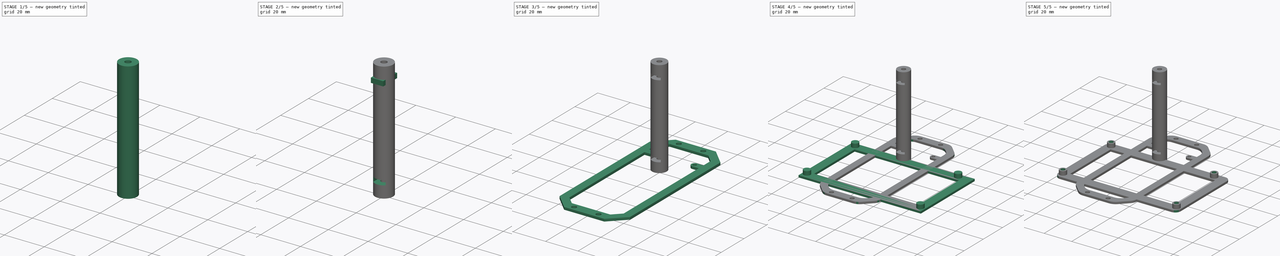
[diagram: build sequence overview — one tinted view per stage of 5, left to right]
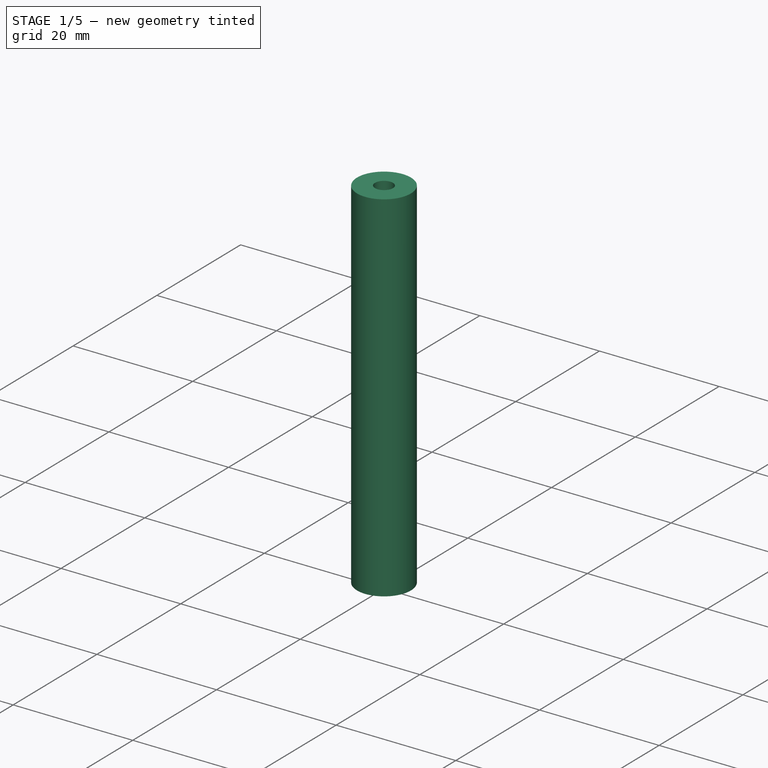
[diagram: stage 1 of 5 — iso view after this stage's code; geometry added in this stage tinted green]
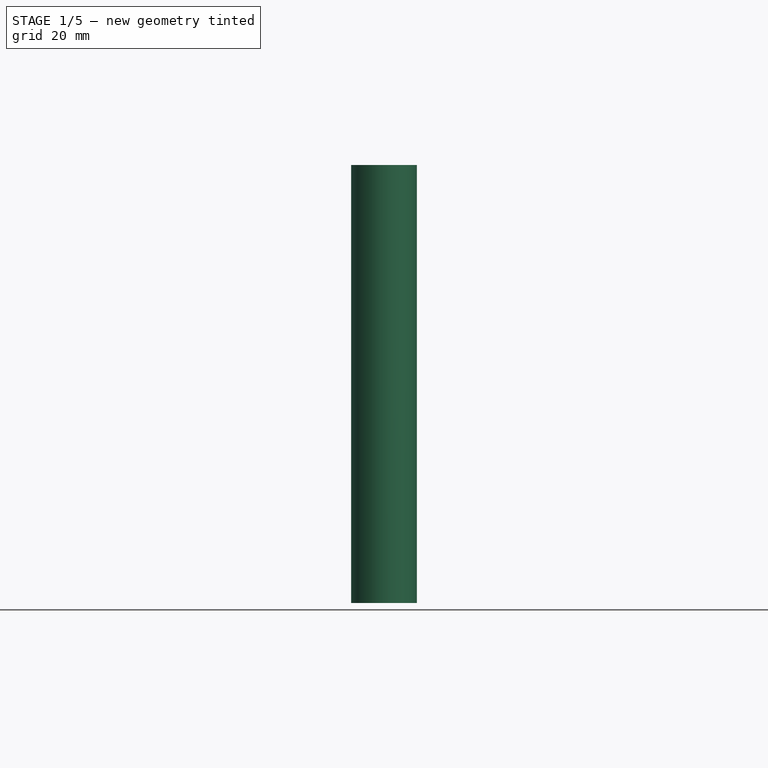
[diagram: stage 1 of 5 — front view after this stage's code; geometry added in this stage tinted green]
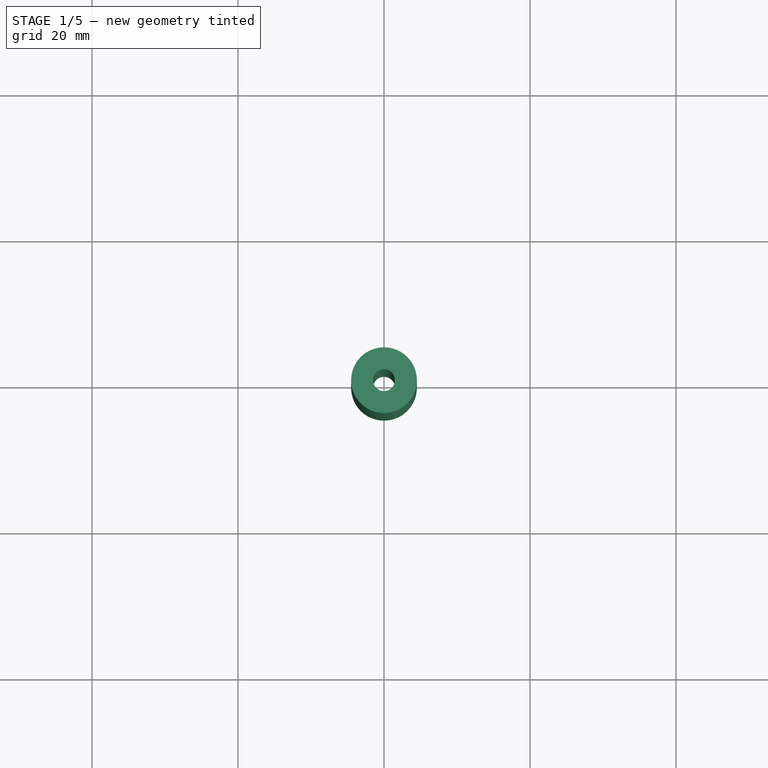
[diagram: stage 1 of 5 — top view after this stage's code; geometry added in this stage tinted green]
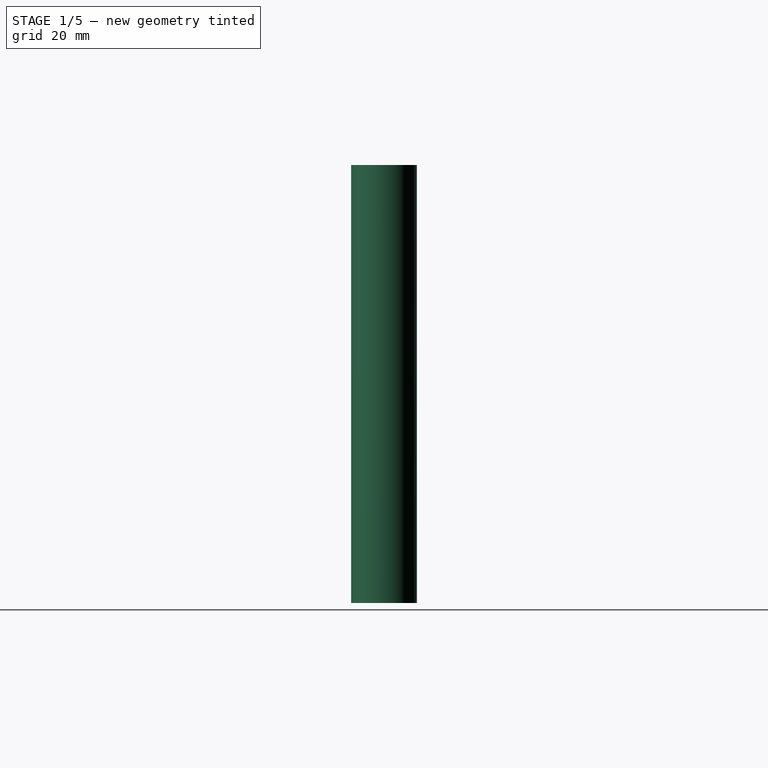
[diagram: stage 1 of 5 — right view after this stage's code; geometry added in this stage tinted green]
FCSTD DOCUMENT  (FreeCAD 0.20R29177 (Git))
Label: LSC-holder03-Boards
License: All rights reserved
LicenseURL: http://en.wikipedia.org/wiki/All_rights_reserved
objects: Sketcher::SketchObject×5, PartDesign::Pad×3, Part::Cut×3, Part::Feature×2, PartDesign::Pocket×2, PartDesign::Fillet×2, PartDesign::Body×2, Part::Box×2, Part::Cylinder×2, Spreadsheet::Sheet×1, PartDesign::Boolean×1
note: 31 computed .brp shape members not serialized (recipe doc carries the construction recipe); baked Part::Feature solids carry a one-line shape summary decoded from their .brp

FEATURE [Part::Cylinder] Cylinder006  label="ColumnMain"
  Angle = 360
  AttacherType = Attacher::AttachEngine3D
  FirstAngle = 0
  Height = 60
  Radius = 4.5
  SecondAngle = 0
  expr: Height = <<params>>.columnHeight
FEATURE [Part::Cylinder] Cylinder007  label="ColumnHole"
  Angle = 360
  AttacherType = Attacher::AttachEngine3D
  FirstAngle = 0
  Height = 60
  Radius = 1.5
  SecondAngle = 0
  expr: Height = <<params>>.columnHeight
FEATURE [Part::Cut] Cut010  label="ColumnTmp01"
  Base = -> Cylinder006
  Tool = -> Cylinder007
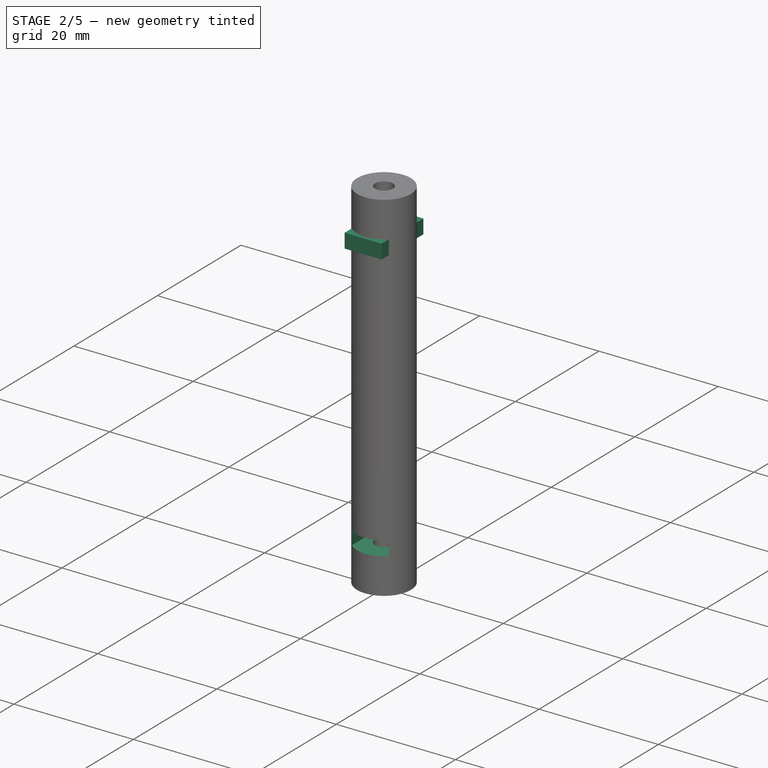
[diagram: stage 2 of 5 — iso view after this stage's code; geometry added in this stage tinted green]
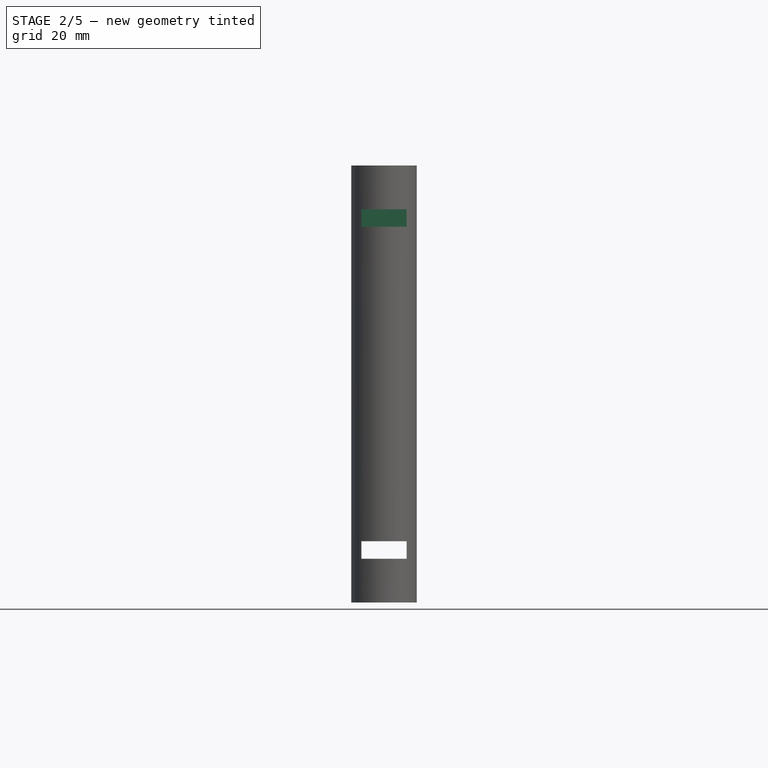
[diagram: stage 2 of 5 — front view after this stage's code; geometry added in this stage tinted green]
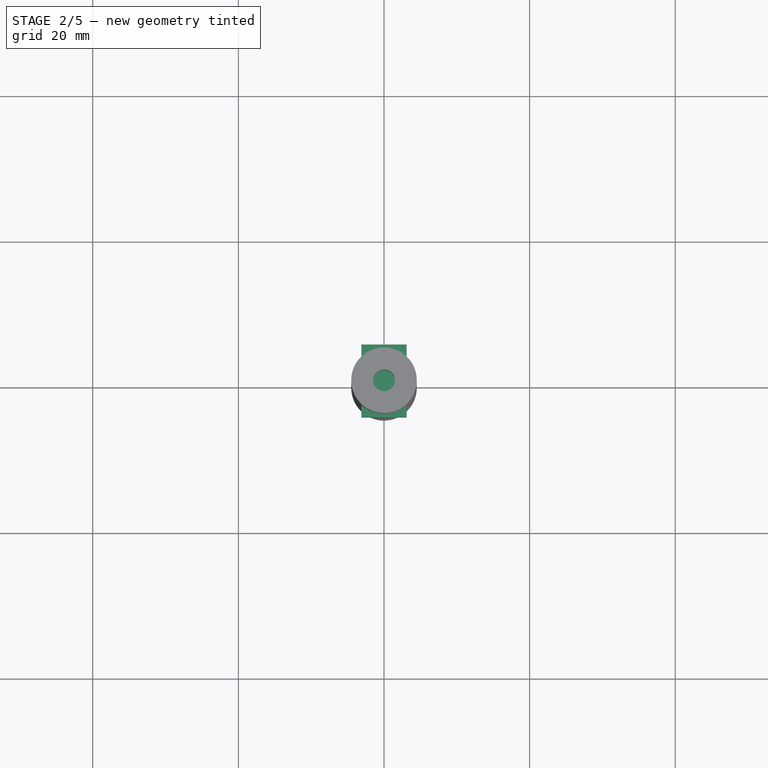
[diagram: stage 2 of 5 — top view after this stage's code; geometry added in this stage tinted green]
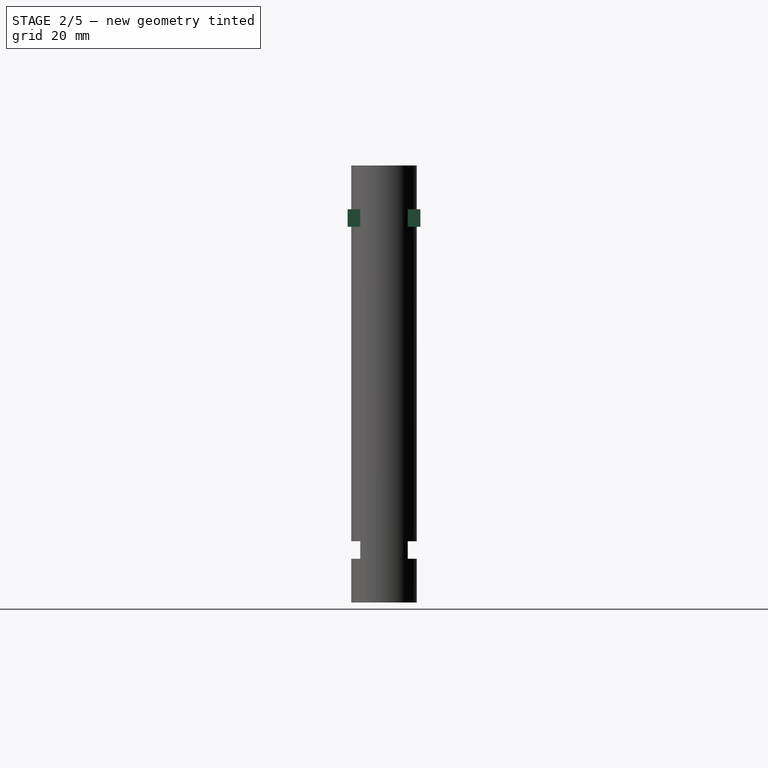
[diagram: stage 2 of 5 — right view after this stage's code; geometry added in this stage tinted green]
FEATURE [PartDesign::Body] Body001  label="MuxSupport"
  Group = -> [Sketch003,Pad002,Sketch004,Pocket001,Fillet001,Boolean]
  Origin = -> Origin001
  Tip = -> Boolean
FEATURE [Part::Box] Box010  label="Nut1"
  AttacherType = Attacher::AttachEngine3D
  Height = 2.4
  Length = 6.2
  Placement = pos=(-3.1,-5,6) rot=(0,0,1;0rad)
  Width = 10
FEATURE [Part::Box] Box011  label="Nut2"
  AttacherType = Attacher::AttachEngine3D
  Height = 2.4
  Length = 6.2
  Placement = pos=(-3.1,-5,51.6) rot=(0,0,1;0rad)
  Width = 10
  expr: .Placement.Base.z = <<params>>.columnHeight - 6 - 2.4
FEATURE [Part::Cut] Cut011  label="ColumnTmp02"
  Base = -> Cut010
  Tool = -> Box010
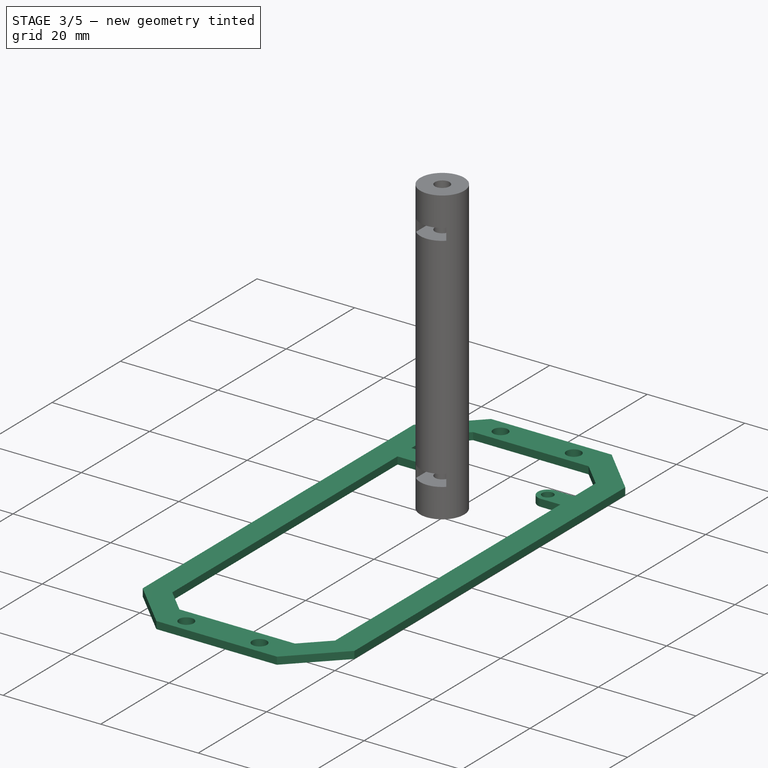
[diagram: stage 3 of 5 — iso view after this stage's code; geometry added in this stage tinted green]
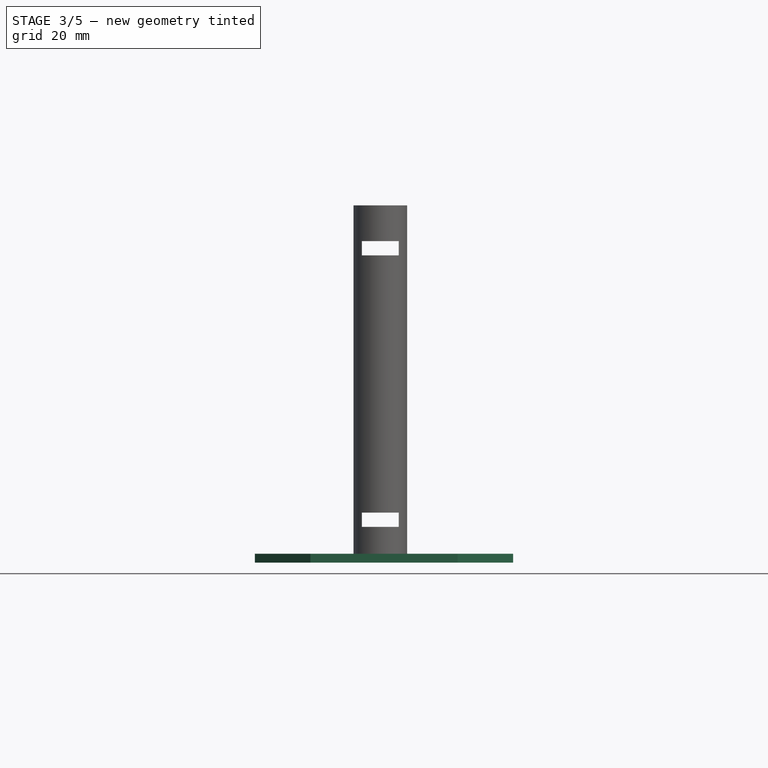
[diagram: stage 3 of 5 — front view after this stage's code; geometry added in this stage tinted green]
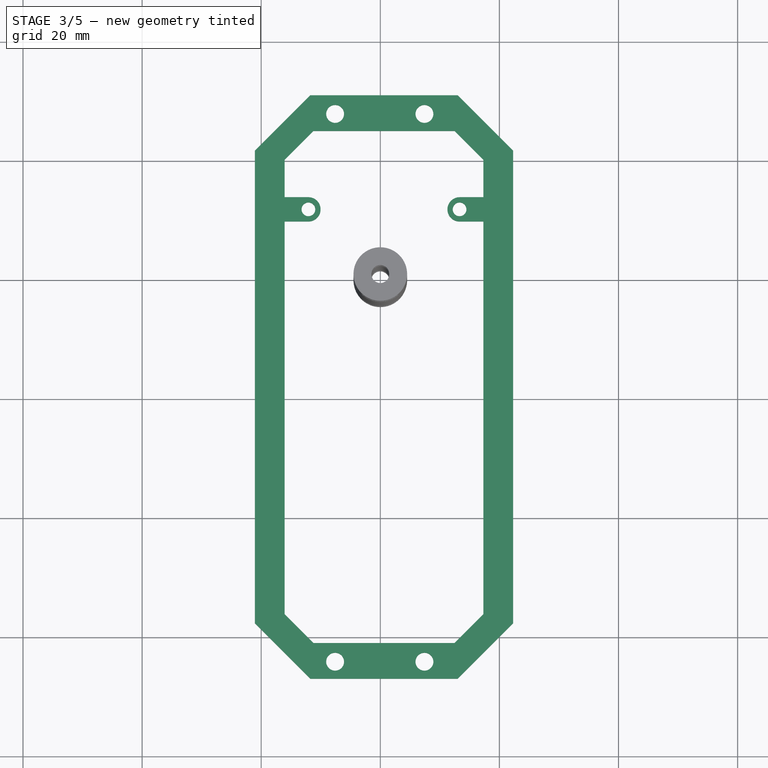
[diagram: stage 3 of 5 — top view after this stage's code; geometry added in this stage tinted green]
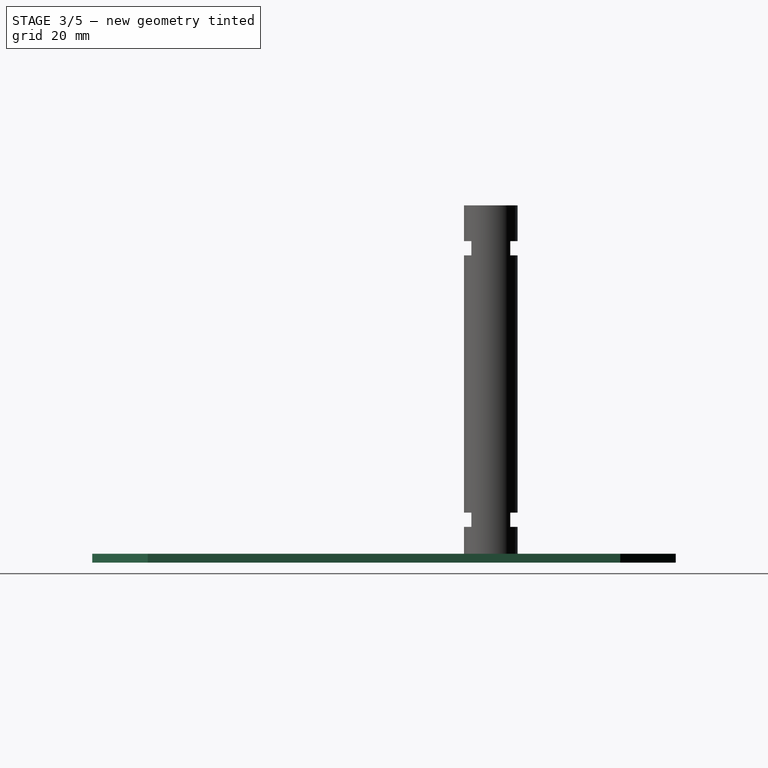
[diagram: stage 3 of 5 — right view after this stage's code; geometry added in this stage tinted green]
FEATURE [Sketcher::SketchObject] Sketch003  label="MuxSupportBase001"
  FullyConstrained = false
  MapMode = 5
  Support = -> [XY_Plane001]
  expr: Constraints[50] = <<params>>.holesHdist - 6
  expr: Constraints[9] = <<params>>.holesHdist + 6
  sketch-geometry (28):
    g0: LineSegment StartX=17.3121 StartY=20.201 StartZ=0 EndX=17.3121 EndY=13.9329 EndZ=0
    g1: LineSegment StartX=12.455 StartY=-60.9418 StartZ=0 EndX=-11.2152 EndY=-60.9418 EndZ=0
    g2: LineSegment StartX=12.9775 StartY=-66.9418 StartZ=0 EndX=-11.7378 EndY=-66.9418 EndZ=0
    g3: GeomPoint X=-16.0724 Y=13.9329 Z=0
    g4: GeomPoint X=-16.0724 Y=9.85286 Z=0
    g5: LineSegment StartX=-16.0724 StartY=13.9329 StartZ=0 EndX=-12.0724 EndY=13.9329 EndZ=0
    g6: LineSegment StartX=-12.0724 StartY=9.85286 StartZ=0 EndX=-16.0724 EndY=9.85286 EndZ=0
    g7: ArcOfCircle CenterX=-12.0724 CenterY=11.8929 CenterZ=0 NormalX=0 NormalY=0 NormalZ=1 AngleXU=0 Radius=2.04 StartAngle=4.71239 EndAngle=7.85398
    g8: GeomPoint X=17.3121 Y=13.9329 Z=0
    g9: GeomPoint X=17.3121 Y=9.85286 Z=0
    g10: LineSegment StartX=17.3121 StartY=13.9329 StartZ=0 EndX=13.3121 EndY=13.9329 EndZ=0
    g11: LineSegment StartX=17.3121 StartY=9.85286 StartZ=0 EndX=13.3121 EndY=9.85286 EndZ=0
    g12: ArcOfCircle CenterX=13.3121 CenterY=11.8929 CenterZ=0 NormalX=0 NormalY=0 NormalZ=1 AngleXU=0 Radius=2.04 StartAngle=1.5708 EndAngle=4.71239
    g13: LineSegment StartX=-21.0724 StartY=21.7236 StartZ=0 EndX=-11.7378 EndY=31.0582 EndZ=0
    g14: LineSegment StartX=-11.7378 StartY=31.0582 StartZ=0 EndX=12.9775 EndY=31.0582 EndZ=0
    g15: LineSegment StartX=-11.2152 StartY=25.0582 StartZ=0 EndX=-16.0724 EndY=20.201 EndZ=0
    g16: LineSegment StartX=-16.0724 StartY=20.201 StartZ=0 EndX=-16.0724 EndY=13.9329 EndZ=0
    g17: LineSegment StartX=-11.2152 StartY=25.0582 StartZ=0 EndX=12.455 EndY=25.0582 EndZ=0
    g18: LineSegment StartX=12.455 StartY=25.0582 StartZ=0 EndX=17.3121 EndY=20.201 EndZ=0
    g19: LineSegment StartX=12.9775 StartY=31.0582 StartZ=0 EndX=22.3121 EndY=21.7236 EndZ=0
    g20: LineSegment StartX=-11.7378 StartY=-66.9418 StartZ=0 EndX=-21.0724 EndY=-57.6072 EndZ=0
    g21: LineSegment StartX=-21.0724 StartY=-57.6072 StartZ=0 EndX=-21.0724 EndY=21.7236 EndZ=0
    g22: LineSegment StartX=22.3121 StartY=21.7236 StartZ=0 EndX=22.3121 EndY=-57.6072 EndZ=0
    g23: LineSegment StartX=22.3121 StartY=-57.6072 StartZ=0 EndX=12.9775 EndY=-66.9418 EndZ=0
    g24: LineSegment StartX=-11.2152 StartY=-60.9418 StartZ=0 EndX=-16.0724 EndY=-56.0846 EndZ=0
    g25: LineSegment StartX=-16.0724 StartY=-56.0846 StartZ=0 EndX=-16.0724 EndY=9.85286 EndZ=0
    g26: LineSegment StartX=17.3121 StartY=9.85286 StartZ=0 EndX=17.3121 EndY=-56.0846 EndZ=0
    g27: LineSegment StartX=17.3121 StartY=-56.0846 StartZ=0 EndX=12.455 EndY=-60.9418 EndZ=0
  constraints (77):
    c: Coincident(g27,g1)
    c: Coincident(g1,g24)
    c: Horizontal(g1)
    c: Vertical(g0)
    c: Coincident(g14,g19)
    c: Coincident(g23,g2)
    c: Coincident(g2,g20)
    c: Coincident(g21,g13)
    c: Horizontal(g2)
    c: DistanceY(g23,g19) = 98
    c: Coincident(g5,g3)
    c: Coincident(g6,g4)
    c: Horizontal(g6)
    c: Equal(g5,g6)
    c: PointOnObject(g25,g6)
    c: Coincident(g7,g5)
    c: Coincident(g7,g6)
    c: Angle(g7) = 3.14159
    c: DistanceX(g5,g5) = 4
    c: PointOnObject(g8,g0)
    c: PointOnObject(g9,g0)
    c: Coincident(g10,g8)
    c: Horizontal(g10)
    c: Coincident(g11,g9)
    c: Horizontal(g11)
    c: PointOnObject(g0,g10)
    c: Equal(g5,g10)
    c: Equal(g10,g11)
    c: Coincident(g12,g10)
    c: Coincident(g12,g11)
    c: Angle(g12) = 3.14159
    c: DistanceY(g25,g5) = 4.08
    c: Coincident(g11,g26)
    c: DistanceY(g11,g25) = 0
    c: Horizontal(g5)
    c: DistanceY(g5,g0) = 0
    c: Coincident(g0,g18)
    c: DistanceX(g7) = -12.0724
    c: DistanceY(g7) = 11.8929
    c: DistanceX(g12) = 13.3121
    c: Coincident(g13,g14)
    c: Angle(g13) = 0.785398
    c: Coincident(g17,g15)
    c: Coincident(g15,g16)
    c: Coincident(g16,g5)
    c: Vertical(g16)
    c: Angle(g15) = -2.35619
    c: Coincident(g17,g18)
    c: Horizontal(g17)
    c: DistanceY(g17,g19) = 6
    c: DistanceY(g1,g17) = 86
    c: Coincident(g19,g22)
    c: Angle(g18) = -0.785398
    c: Angle(g19) = -0.785398
    c: Block(g14)
    c: Equal(g13,g19)
    c: Equal(g15,g18)
    c: Coincident(g20,g21)
    c: Vertical(g21)
    c: Coincident(g22,g23)
    c: Vertical(g22)
    c: Coincident(g24,g25)
    c: Vertical(g25)
    c: PointOnObject(g3,g25)
    c: PointOnObject(g4,g25)
    c: Coincident(g26,g27)
    c: Vertical(g26)
    c: DistanceX(g20,g24) = 5
    c: DistanceX(g26,g22) = 5
    c: Angle(g24) = 2.35619
    c: Angle(g20) = 2.35619
    c: Angle(g27) = -2.35619
    c: Angle(g23) = -2.35619
    c: Equal(g24,g27)
    c: Equal(g20,g23)
    c: Equal(g18,g27)
    c: Equal(g23,g19)
FEATURE [Spreadsheet::Sheet] Spreadsheet  label="params"
  cells = A2(holesHdist)=92; A3(holesVdist)=15; A4(columnHeight)=60
FEATURE [PartDesign::Pad] Pad002  label="MuxSupportBase"
  Direction = (0,0,1)
  Length = 1.5
  Length2 = 10
  Profile = -> Sketch003
  ReferenceAxis = -> Sketch003 [N_Axis]
  Type = 0
FEATURE [Sketcher::SketchObject] Sketch004  label="MuxSupportHoles001"
  ExternalGeometry = -> [Pad002]
  FullyConstrained = false
  MapMode = 5
  Placement = pos=(0,0,1.5) rot=(0,0,1;0rad)
  Support = -> [Pad002]
  expr: Constraints[4] = <<params>>.holesVdist
  expr: Constraints[5] = <<params>>.holesHdist
  sketch-geometry (6):
    g0: Circle CenterX=-7.58984 CenterY=27.9174 CenterZ=0 NormalX=0 NormalY=0 NormalZ=1 AngleXU=0 Radius=1.5
    g1: Circle CenterX=7.41016 CenterY=27.9174 CenterZ=0 NormalX=0 NormalY=0 NormalZ=1 AngleXU=0 Radius=1.5
    g2: Circle CenterX=-7.58984 CenterY=-64.0826 CenterZ=0 NormalX=0 NormalY=0 NormalZ=1 AngleXU=0 Radius=1.5
    g3: Circle CenterX=7.41016 CenterY=-64.0826 CenterZ=0 NormalX=0 NormalY=0 NormalZ=1 AngleXU=0 Radius=1.5
    g4: Circle CenterX=13.3121 CenterY=11.8929 CenterZ=0 NormalX=0 NormalY=0 NormalZ=1 AngleXU=0 Radius=1.15
    g5: Circle CenterX=-12.0724 CenterY=11.8929 CenterZ=0 NormalX=0 NormalY=0 NormalZ=1 AngleXU=0 Radius=1.15
  constraints (14):
    c: Horizontal(g2,g3)
    c: Horizontal(g0,g1)
    c: Vertical(g0,g2)
    c: Vertical(g1,g3)
    c: DistanceX(g0,g1) = 15
    c: DistanceY(g2,g0) = 92
    c: Equal(g2,g0)
    c: Equal(g2,g1)
    c: Equal(g2,g3)
    c: Diameter(g2) = 3
    c: Equal(g4,g5)
    c: Diameter(g4) = 2.3
    c: Coincident(g5,g-4)
    c: Coincident(g-5,g4)
FEATURE [PartDesign::Pocket] Pocket001  label="MuxSupportHoles"
  BaseFeature = -> Pad002
  Direction = (0,0,-1)
  Length = 5
  Length2 = 5
  Profile = -> Sketch004
  ReferenceAxis = -> Sketch004 [N_Axis]
  Type = 1
FEATURE [Part::Cut] Cut012  label="Column"
  Base = -> Cut011
  Tool = -> Box011
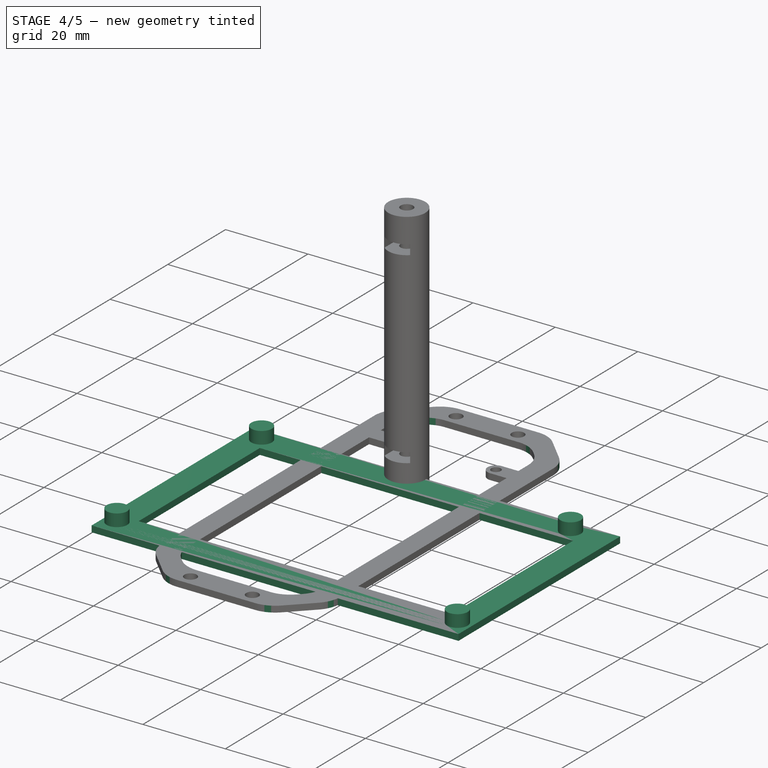
[diagram: stage 4 of 5 — iso view after this stage's code; geometry added in this stage tinted green]
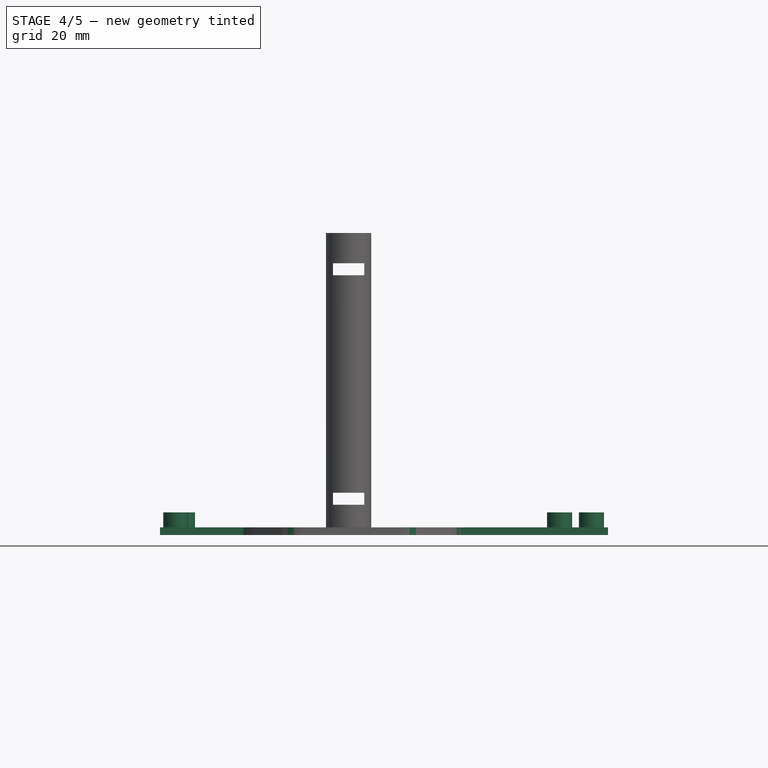
[diagram: stage 4 of 5 — front view after this stage's code; geometry added in this stage tinted green]
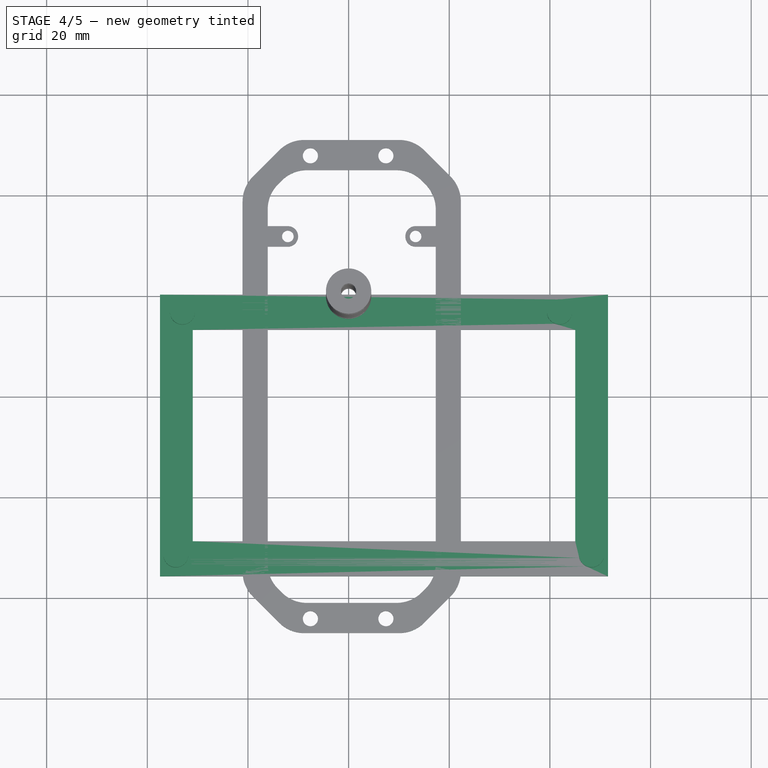
[diagram: stage 4 of 5 — top view after this stage's code; geometry added in this stage tinted green]
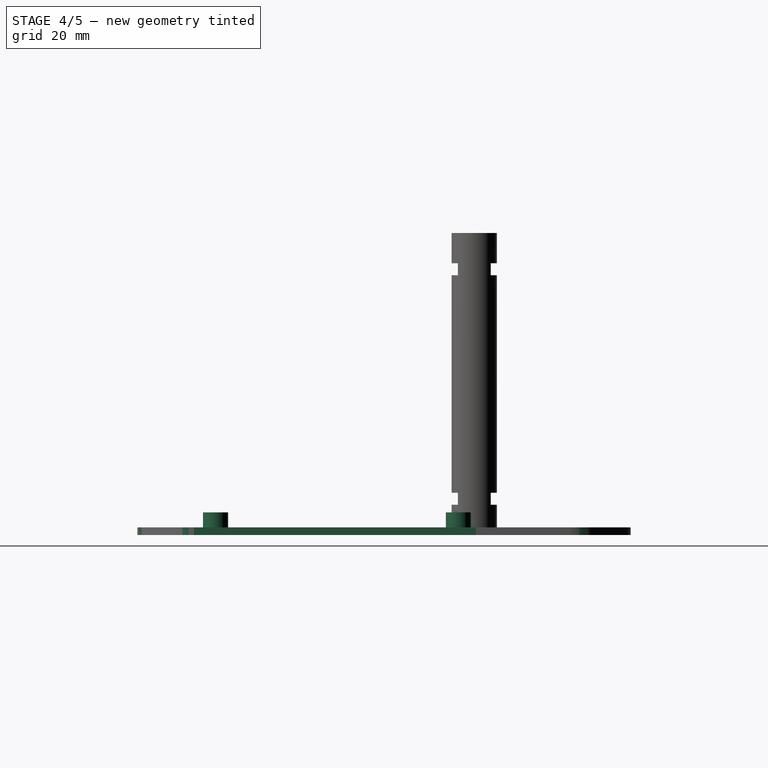
[diagram: stage 4 of 5 — right view after this stage's code; geometry added in this stage tinted green]
FEATURE [Part::Feature] Solid  label="Arduino Due"
  Placement = pos=(-146,78,0) rot=(0,0,1;0rad)
  shape: bbox 101.6 x 53.34 x 1.6 mm, 203 faces (baked)
FEATURE [Part::Feature] Solid001  label="TCA9548A"
  Placement = pos=(-102.98,-144.07,0) rot=(0,0,1;1.5708rad)
  shape: bbox 30.48 x 17.78 x 1.6 mm, 32 faces (baked)
FEATURE [Sketcher::SketchObject] Sketch  label="ArduinoBase001"
  FullyConstrained = false
  MapMode = 5
  Support = -> [XY_Plane]
  sketch-geometry (8):
    g0: LineSegment StartX=-37.466 StartY=-55.6859 StartZ=0 EndX=51.534 EndY=-55.6859 EndZ=0
    g1: LineSegment StartX=51.534 StartY=-55.6859 StartZ=0 EndX=51.534 EndY=0.31406 EndZ=0
    g2: LineSegment StartX=51.534 StartY=0.31406 StartZ=0 EndX=-37.466 EndY=0.31406 EndZ=0
    g3: LineSegment StartX=-37.466 StartY=0.31406 StartZ=0 EndX=-37.466 EndY=-55.6859 EndZ=0
    g4: LineSegment StartX=-30.966 StartY=-6.68594 StartZ=0 EndX=45.034 EndY=-6.68594 EndZ=0
    g5: LineSegment StartX=45.034 StartY=-6.68594 StartZ=0 EndX=45.034 EndY=-48.6859 EndZ=0
    g6: LineSegment StartX=45.034 StartY=-48.6859 StartZ=0 EndX=-30.966 EndY=-48.6859 EndZ=0
    g7: LineSegment StartX=-30.966 StartY=-48.6859 StartZ=0 EndX=-30.966 EndY=-6.68594 EndZ=0
  constraints (22):
    c: Coincident(g0,g1)
    c: Coincident(g1,g2)
    c: Coincident(g2,g3)
    c: Coincident(g3,g0)
    c: Horizontal(g0)
    c: Horizontal(g2)
    c: Vertical(g1)
    c: Vertical(g3)
    c: Coincident(g4,g5)
    c: Coincident(g5,g6)
    c: Coincident(g6,g7)
    c: Coincident(g7,g4)
    c: Horizontal(g4)
    c: Horizontal(g6)
    c: Vertical(g5)
    c: Vertical(g7)
    c: DistanceY(g4,g2) = 7
    c: DistanceY(g0,g6) = 7
    c: DistanceX(g2,g4) = 6.5
    c: DistanceX(g4,g1) = 6.5
    c: DistanceX(g2,g2) = 89
    c: DistanceY(g1,g1) = 56
FEATURE [PartDesign::Pad] Pad  label="ArduinoBase"
  Direction = (0,0,1)
  Length = 1.5
  Length2 = 10
  Profile = -> Sketch
  ReferenceAxis = -> Sketch [N_Axis]
  Type = 0
FEATURE [Sketcher::SketchObject] Sketch001  label="ArduinoHolesSupp001"
  FullyConstrained = false
  MapMode = 5
  Placement = pos=(0,0,1.5) rot=(0,0,1;0rad)
  Support = -> [Pad]
  sketch-geometry (4):
    g0: Circle CenterX=-33.0167 CenterY=-3.14729 CenterZ=0 NormalX=0 NormalY=0 NormalZ=1 AngleXU=0 Radius=2.5
    g1: Circle CenterX=-34.3225 CenterY=-51.4073 CenterZ=0 NormalX=0 NormalY=0 NormalZ=1 AngleXU=0 Radius=2.5
    g2: Circle CenterX=41.9133 CenterY=-3.14729 CenterZ=0 NormalX=0 NormalY=0 NormalZ=1 AngleXU=0 Radius=2.5
    g3: Circle CenterX=48.2633 CenterY=-51.4073 CenterZ=0 NormalX=0 NormalY=0 NormalZ=1 AngleXU=0 Radius=2.5
  constraints (9):
    c: DistanceY(g0,g2) = 0
    c: DistanceY(g3,g1) = 0
    c: Equal(g0,g1)
    c: Equal(g0,g3)
    c: Equal(g0,g2)
    c: Diameter(g0) = 5
    c: DistanceY(g1,g0) = 48.26
    c: DistanceX(g2,g3) = 6.35
    c: DistanceX(g0,g2) = 74.93
FEATURE [PartDesign::Pad] Pad001  label="ArduinoHolesSupp"
  BaseFeature = -> Pad
  Direction = (0,0,1)
  Length = 3
  Length2 = 10
  Profile = -> Sketch001
  ReferenceAxis = -> Sketch001 [N_Axis]
  Type = 0
FEATURE [PartDesign::Body] Body  label="ArduinoSupport"
  Group = -> [Sketch,Pad,Sketch001,Pad001,Sketch002,Pocket,Fillet]
  Origin = -> Origin
  Tip = -> Fillet
FEATURE [PartDesign::Fillet] Fillet001  label="MuxSoftEdge"
  Base = -> Pocket001 [Edge1,Edge5,Edge2,Edge8,Edge85,Edge86,Edge88,Edge87,Edge66,Edge68,Edge65,Edge67,Edge75,Edge73,Edge74,Edge76]
  BaseFeature = -> Pocket001
  Radius = 7
  SupportTransform = false
  UseAllEdges = false
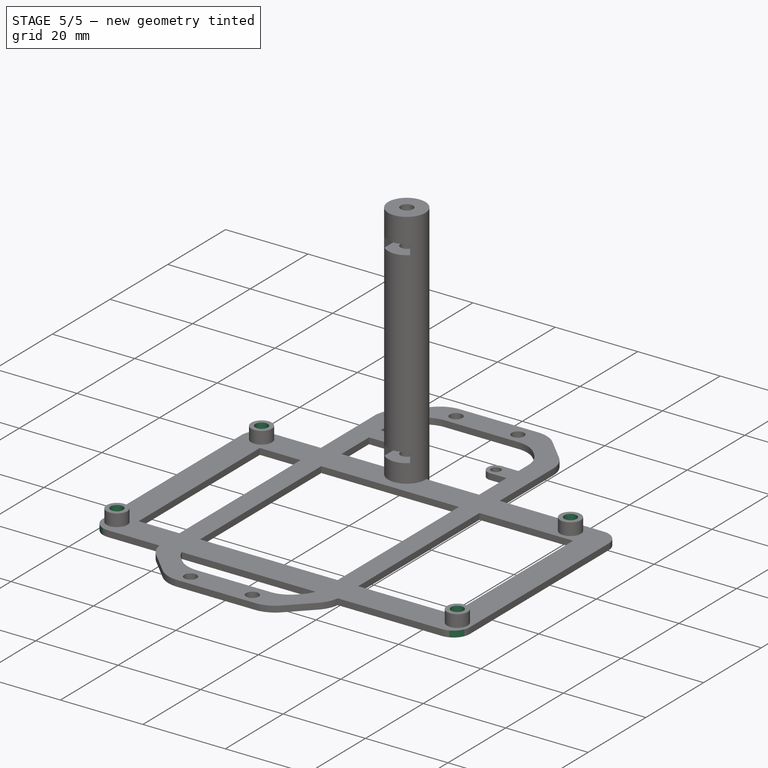
[diagram: stage 5 of 5 — iso view after this stage's code; geometry added in this stage tinted green]
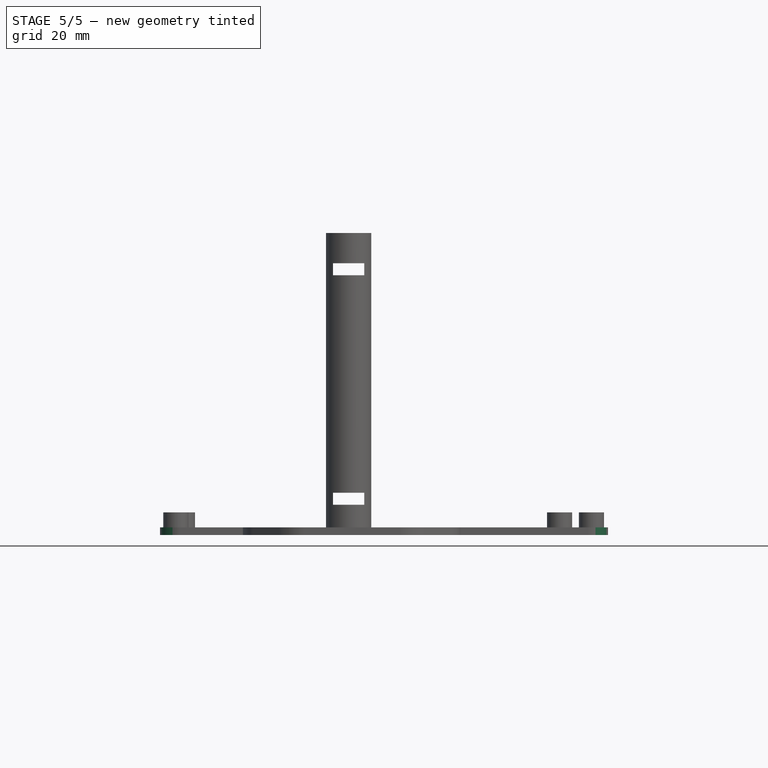
[diagram: stage 5 of 5 — front view after this stage's code; geometry added in this stage tinted green]
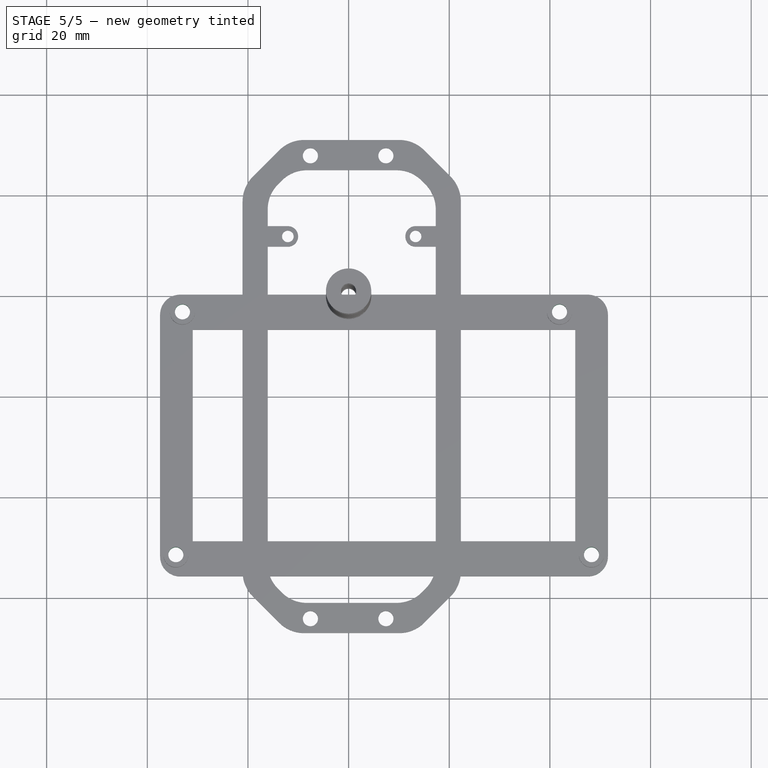
[diagram: stage 5 of 5 — top view after this stage's code; geometry added in this stage tinted green]
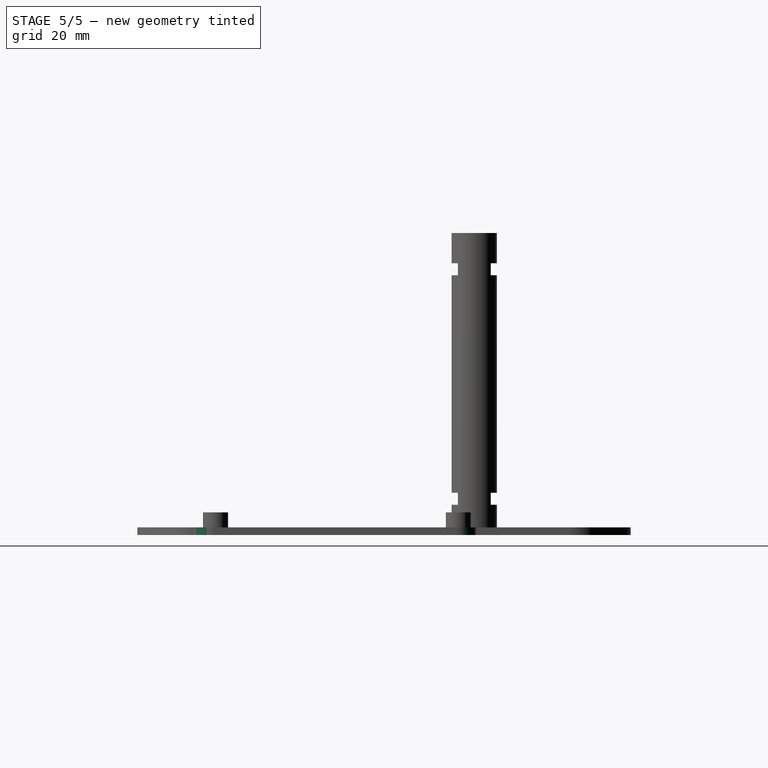
[diagram: stage 5 of 5 — right view after this stage's code; geometry added in this stage tinted green]
FEATURE [Sketcher::SketchObject] Sketch002  label="ArduinoHoles001"
  ExternalGeometry = -> [Pad001]
  FullyConstrained = true
  MapMode = 5
  Placement = pos=(0,0,4.5) rot=(0,0,1;0rad)
  Support = -> [Pad001]
  sketch-geometry (4):
    g0: Circle CenterX=-33.0167 CenterY=-3.14729 CenterZ=0 NormalX=0 NormalY=0 NormalZ=1 AngleXU=0 Radius=1.5
    g1: Circle CenterX=-34.3225 CenterY=-51.4073 CenterZ=0 NormalX=0 NormalY=0 NormalZ=1 AngleXU=0 Radius=1.5
    g2: Circle CenterX=48.2633 CenterY=-51.4073 CenterZ=0 NormalX=0 NormalY=0 NormalZ=1 AngleXU=0 Radius=1.5
    g3: Circle CenterX=41.9133 CenterY=-3.14729 CenterZ=0 NormalX=0 NormalY=0 NormalZ=1 AngleXU=0 Radius=1.5
  constraints (8):
    c: Coincident(g0,g-3)
    c: Coincident(g1,g-4)
    c: Coincident(g2,g-5)
    c: Coincident(g3,g-6)
    c: Equal(g0,g1)
    c: Equal(g0,g3)
    c: Equal(g0,g2)
    c: Diameter(g0) = 3
FEATURE [PartDesign::Pocket] Pocket  label="ArduinoHoles"
  BaseFeature = -> Pad001
  Direction = (0,0,-1)
  Length = 5
  Length2 = 5
  Profile = -> Sketch002
  ReferenceAxis = -> Sketch002 [N_Axis]
  Type = 1
FEATURE [PartDesign::Fillet] Fillet  label="ArduinoSoft"
  Base = -> Pocket [Edge8,Edge2,Edge1,Edge5]
  BaseFeature = -> Pocket
  Radius = 4
  SupportTransform = false
  UseAllEdges = false
FEATURE [PartDesign::Boolean] Boolean
  BaseFeature = -> Fillet001
  Group = -> [Body]
  Type = 0
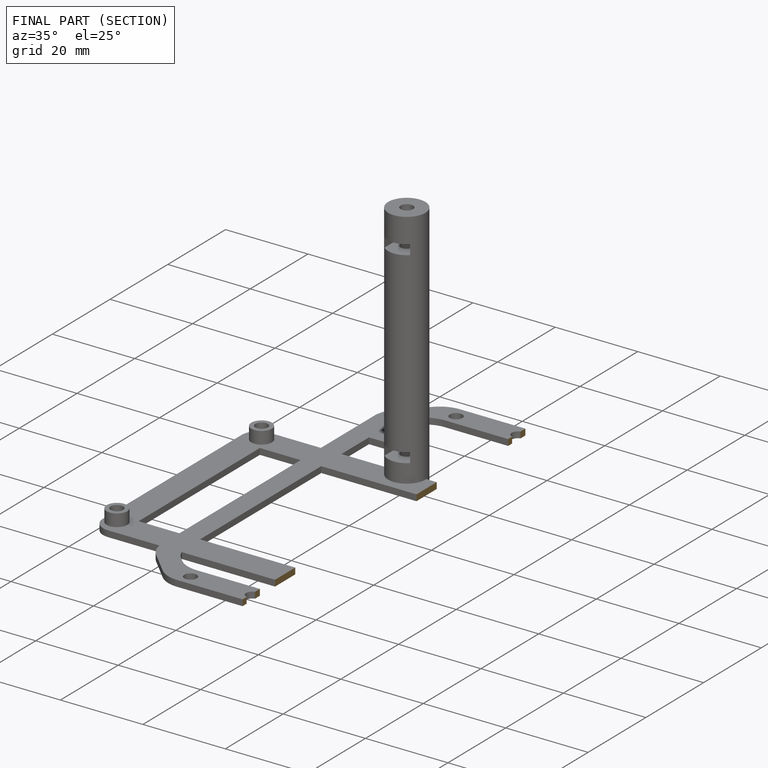
[diagram: finished part — half-section view (interior)]
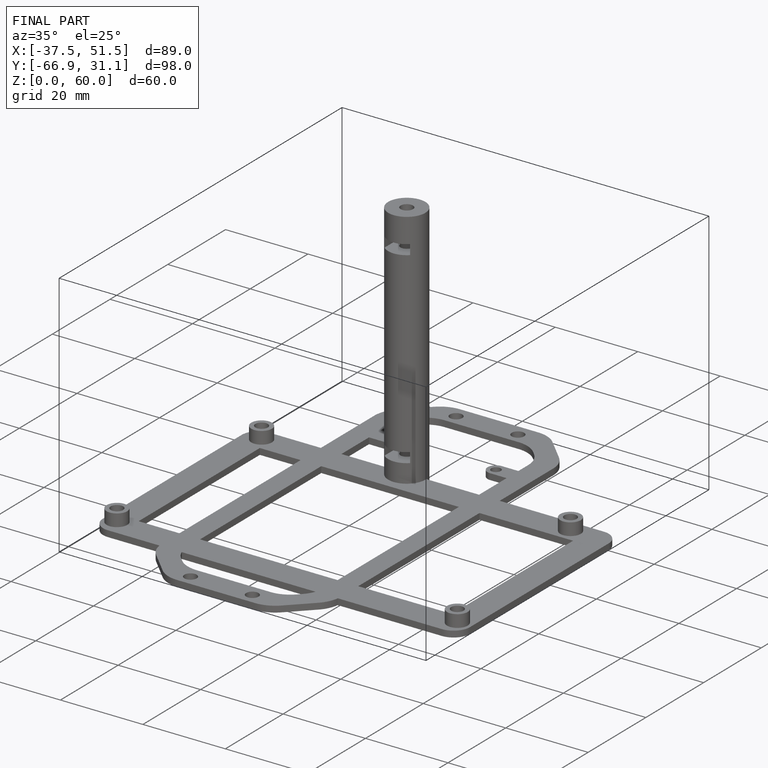
[diagram: finished part — iso view with bounding-box wireframe]
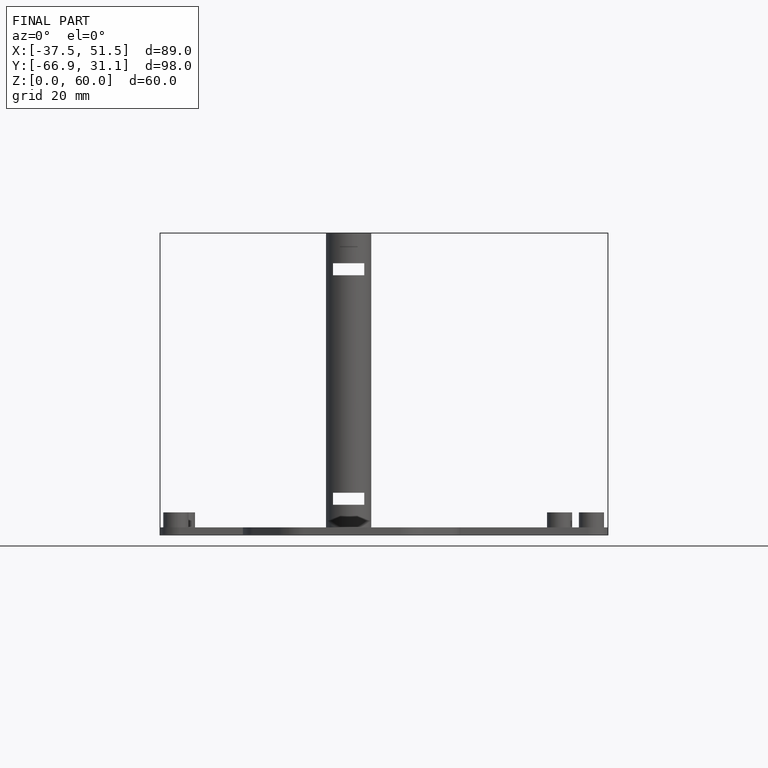
[diagram: finished part — front view with bounding-box wireframe]
